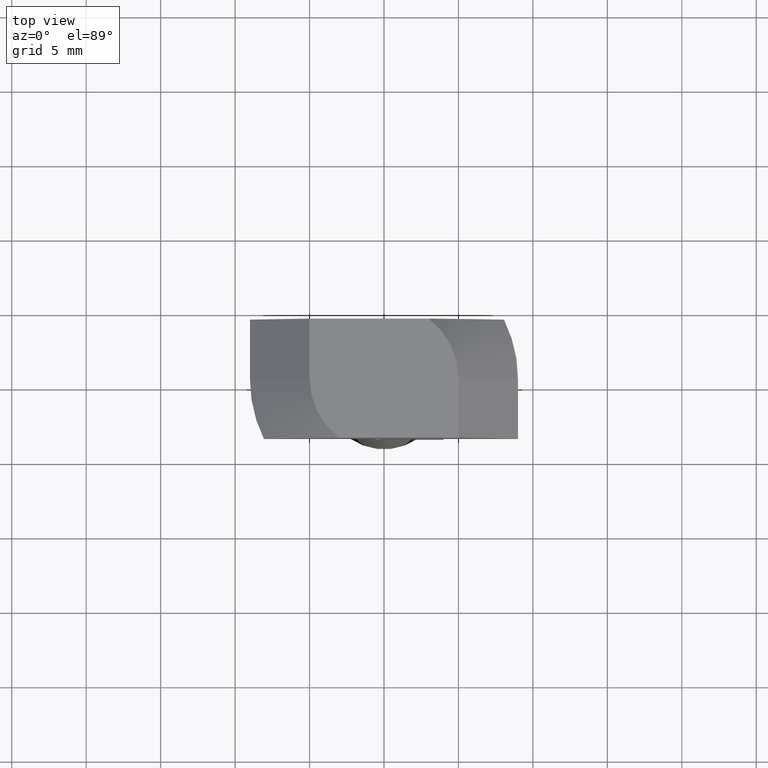
[diagram: clean part render]
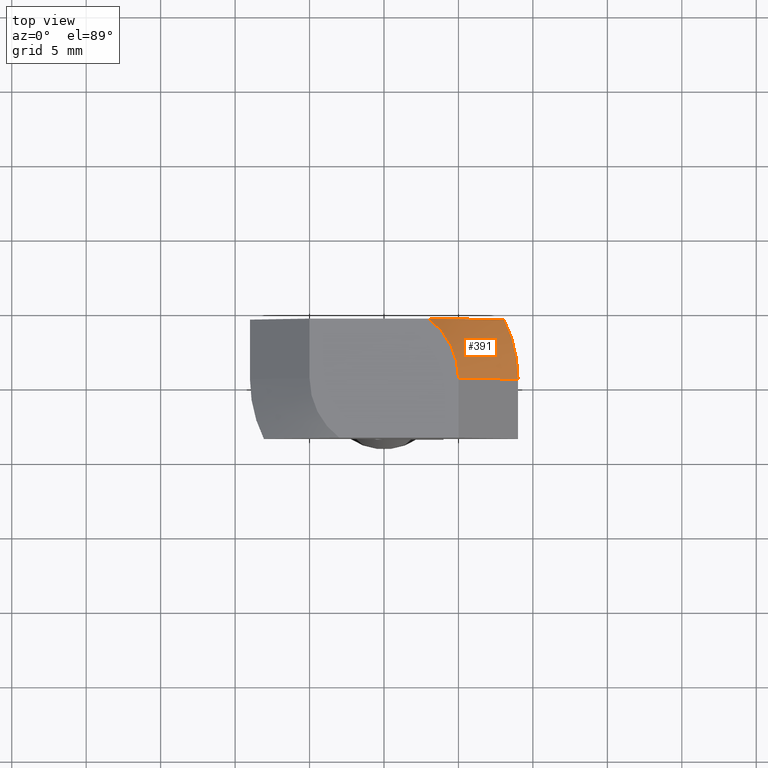
[diagram: same view with one face highlighted and labeled with its STEP entity id]
A machine part, top view. The second image highlights one B-rep face of the part: STEP entity #391.
In plain terms, the highlighted conical surface has half-angle 45 deg.
Its self-contained STEP definition (entity closure, byte-faithful):
#15=(
BOUNDED_CURVE()
B_SPLINE_CURVE(2,(#651,#652,#653),.UNSPECIFIED.,.F.,.F.)
B_SPLINE_CURVE_WITH_KNOTS((3,3),(0.,0.645810133031387),.UNSPECIFIED.)
CURVE()
GEOMETRIC_REPRESENTATION_ITEM()
RATIONAL_B_SPLINE_CURVE((1.,1.07257323111151,1.))
REPRESENTATION_ITEM('')
);
#49=FACE_OUTER_BOUND('',#73,.T.);
#73=EDGE_LOOP('',(#317,#318,#319,#320));
#106=LINE('',#657,#144);
#144=VECTOR('',#537,10.);
#171=CIRCLE('',#449,5.);
#172=CIRCLE('',#450,9.);
#198=VERTEX_POINT('',#649);
#199=VERTEX_POINT('',#650);
#200=VERTEX_POINT('',#654);
#201=VERTEX_POINT('',#656);
#243=EDGE_CURVE('',#198,#199,#15,.T.);
#244=EDGE_CURVE('',#200,#198,#171,.T.);
#245=EDGE_CURVE('',#200,#201,#106,.T.);
#246=EDGE_CURVE('',#201,#199,#172,.T.);
#317=ORIENTED_EDGE('',*,*,#243,.F.);
#318=ORIENTED_EDGE('',*,*,#244,.F.);
#319=ORIENTED_EDGE('',*,*,#245,.T.);
#320=ORIENTED_EDGE('',*,*,#246,.T.);
#377=CONICAL_SURFACE('',#448,7.,0.785398163397448);
#391=ADVANCED_FACE('',(#49),#377,.T.);
#448=AXIS2_PLACEMENT_3D('',#648,#533,#534);
#449=AXIS2_PLACEMENT_3D('',#655,#535,#536);
#450=AXIS2_PLACEMENT_3D('',#658,#538,#539);
#533=DIRECTION('center_axis',(0.,0.,-1.));
#534=DIRECTION('ref_axis',(1.,0.,0.));
#535=DIRECTION('center_axis',(2.04289535270664E-17,0.,1.));
#536=DIRECTION('ref_axis',(1.,0.,0.));
#537=DIRECTION('',(0.707106781186547,0.,-0.707106781186548));
#538=DIRECTION('center_axis',(2.9781283147877E-16,2.9781283147877E-16,1.));
#539=DIRECTION('ref_axis',(1.,1.2335811384724E-16,-3.08395284618099E-16));
#648=CARTESIAN_POINT('Origin',(0.,0.,-2.));
#649=CARTESIAN_POINT('',(3.,4.,0.));
#650=CARTESIAN_POINT('',(8.06225774829855,4.,-4.));
#651=CARTESIAN_POINT('Ctrl Pts',(3.,4.,-2.77555756156289E-16));
#652=CARTESIAN_POINT('Ctrl Pts',(4.80794919582092,4.,-1.08476951749255));
#653=CARTESIAN_POINT('Ctrl Pts',(8.06225774829855,4.,-4.));
#654=CARTESIAN_POINT('',(5.,0.,0.));
#655=CARTESIAN_POINT('Origin',(0.,0.,2.77555756156289E-16));
#656=CARTESIAN_POINT('',(9.,0.,-4.));
#657=CARTESIAN_POINT('',(7.,0.,-2.));
#658=CARTESIAN_POINT('Origin',(-1.11022302462516E-15,-1.11022302462516E-15,
-4.));